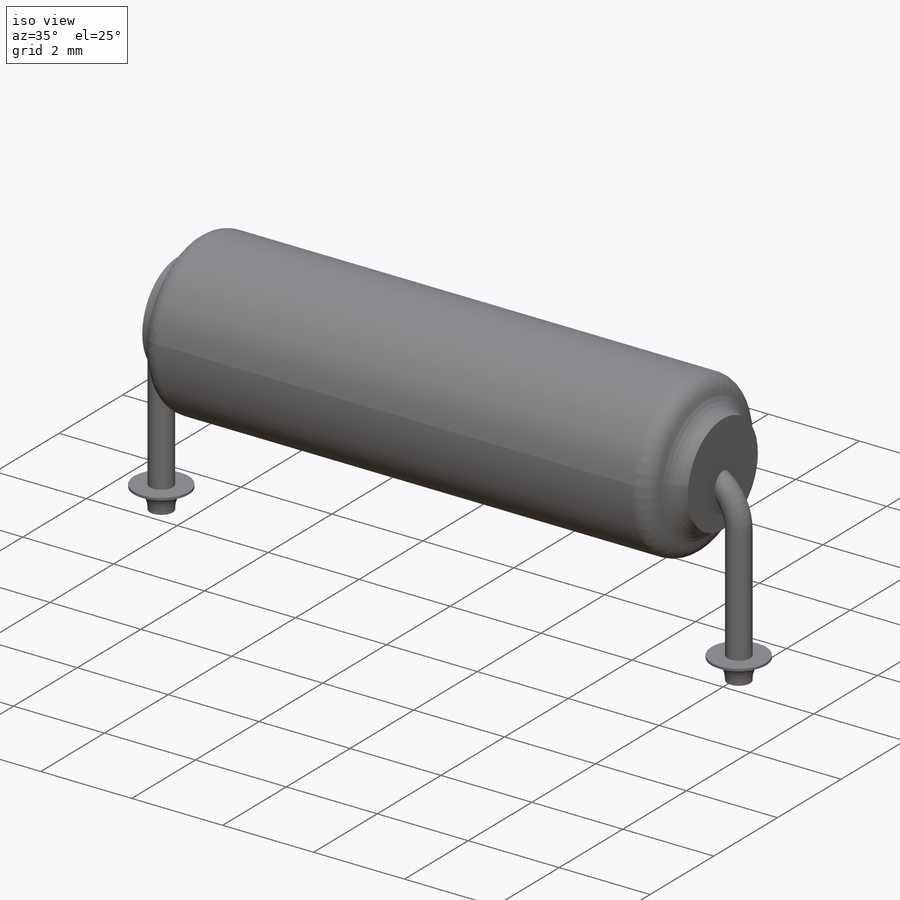
[diagram: iso view]
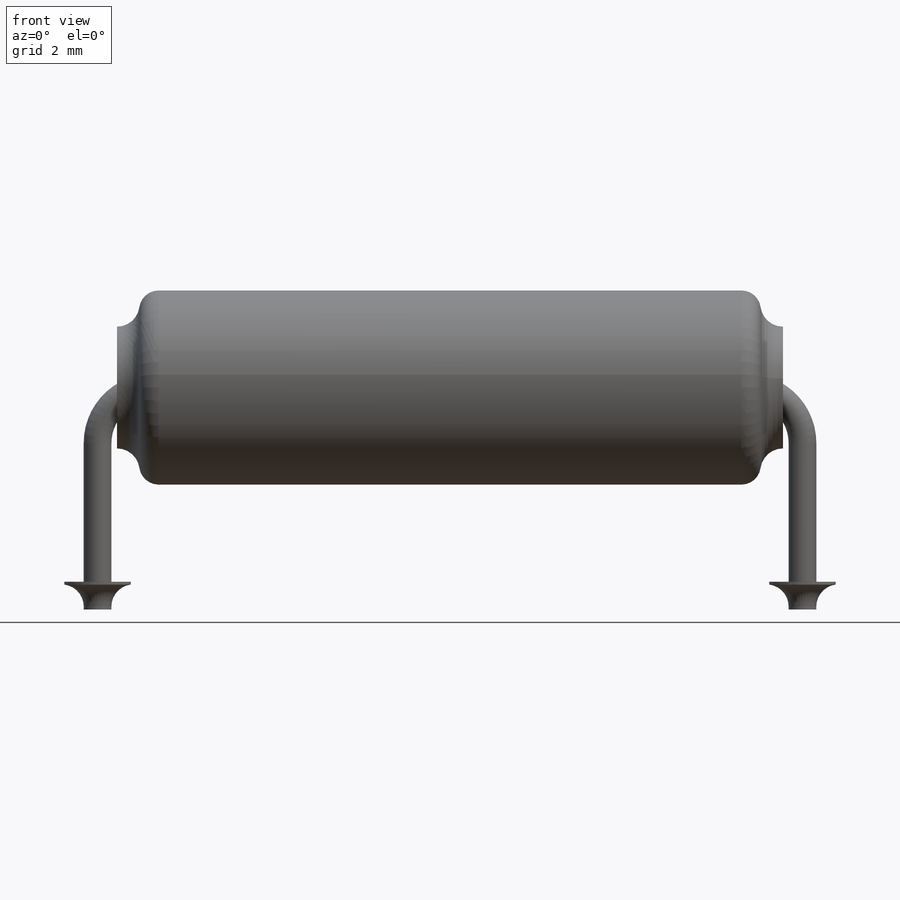
[diagram: front view]
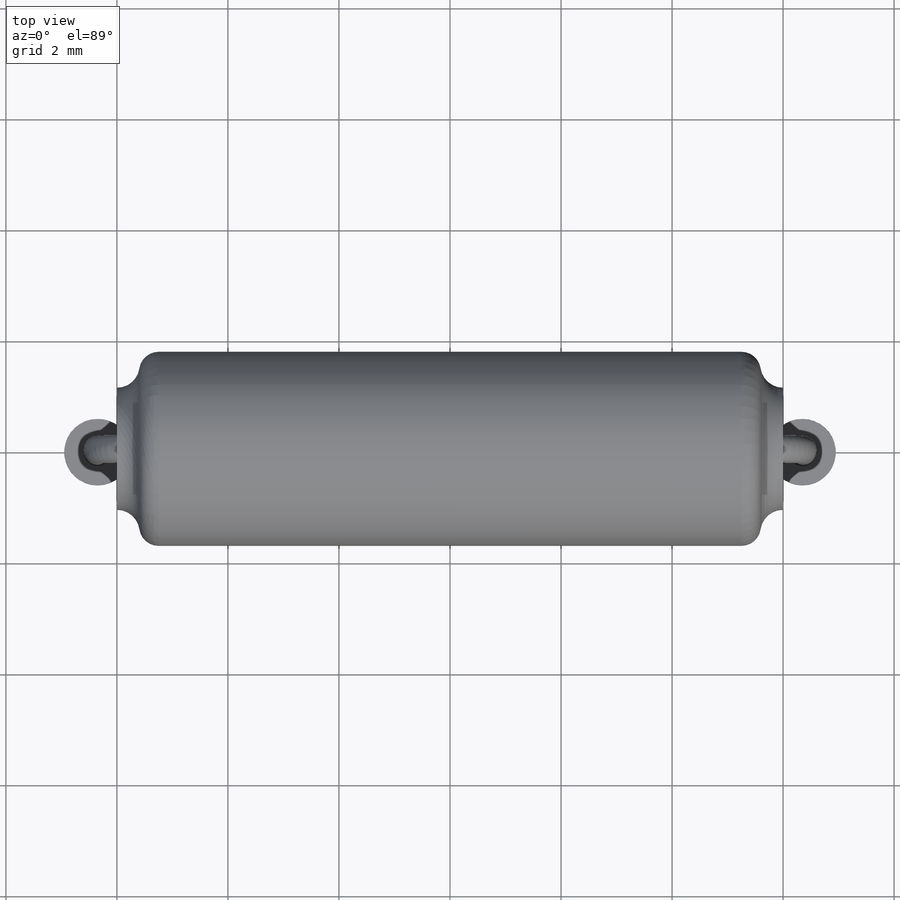
[diagram: top view]
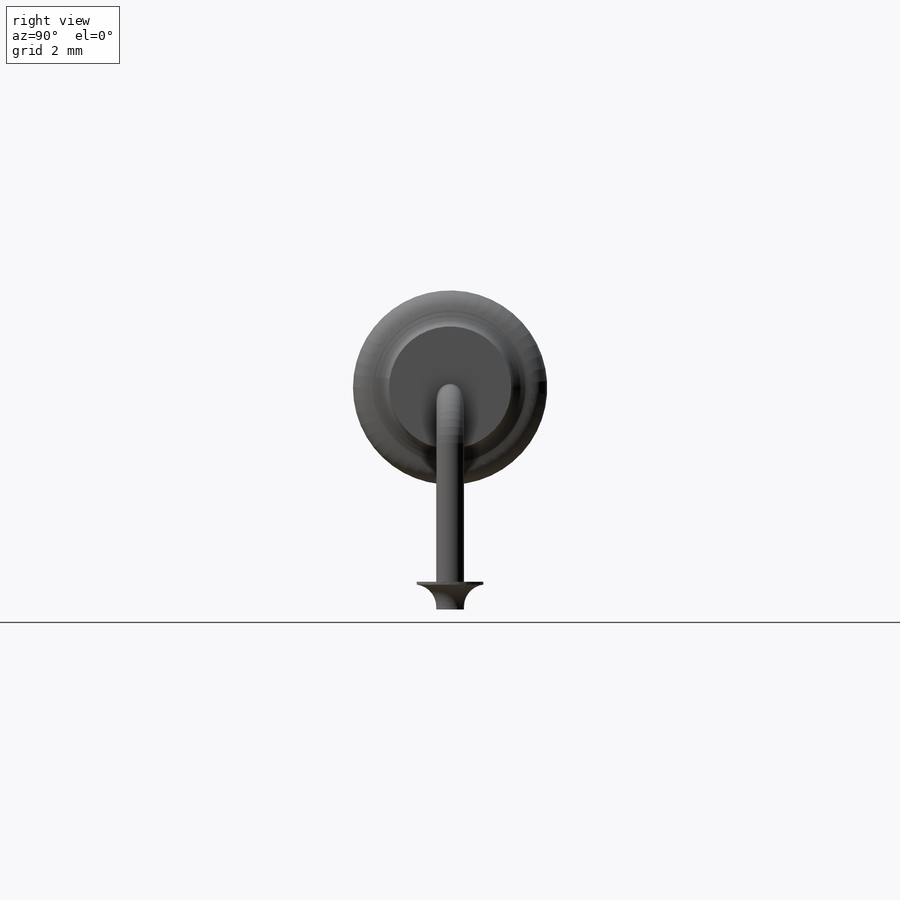
[diagram: right view]
SOLIDWORKS PART (.sldprt)
format: sldprt  version: not decoded by parser v0  size: 231,936 bytes
history: native  units: mm
features: sketch x4, plane x3, material x1, revolve x1, sweep x1, extrude x1, fillet x1, mirror x1 (+8 scaffold rows collapsed)
feature tree (21):
  scaffold x8  (default folders/planes/origin — collapsed)
  material  "Matériau <non spécifié>"
  plane  "Plan de face"
  plane  "Plan de dessus"
  plane  "Plan de droite"
  sketch  "Esquisse2"  dims[c1.D3=1.0mm c1.D1=~2.930386mm c2.D1=~1.541219deg c3.D1=14.0mm c3.D2=4.0mm c3.D3=6.35mm]
  sketch  "Esquisse6"  dims[D5=0.35mm D1=3.5mm D2=12.0mm D3=2.2mm D4=10.5mm]
  revolve  "Révolution2"  Angle=360deg
  sketch  "Esquisse3"  dims[D1=~0.25732mm]
  sweep  "Balayage3"
  sketch  "Esquisse5"  dims[D1=1.2mm]
  extrude  "Boss.-Extru.2"  Depth=0.05mm
  fillet  "Congé2"  Radius=0.4mm
  mirror  "Symétrie3"
decode coverage: 7 of 9 modeling features carry decoded parameters
note: ~ marks probable driven/reference dimensions
note: suppression state not decoded; provenance and decode notes live in map.json
